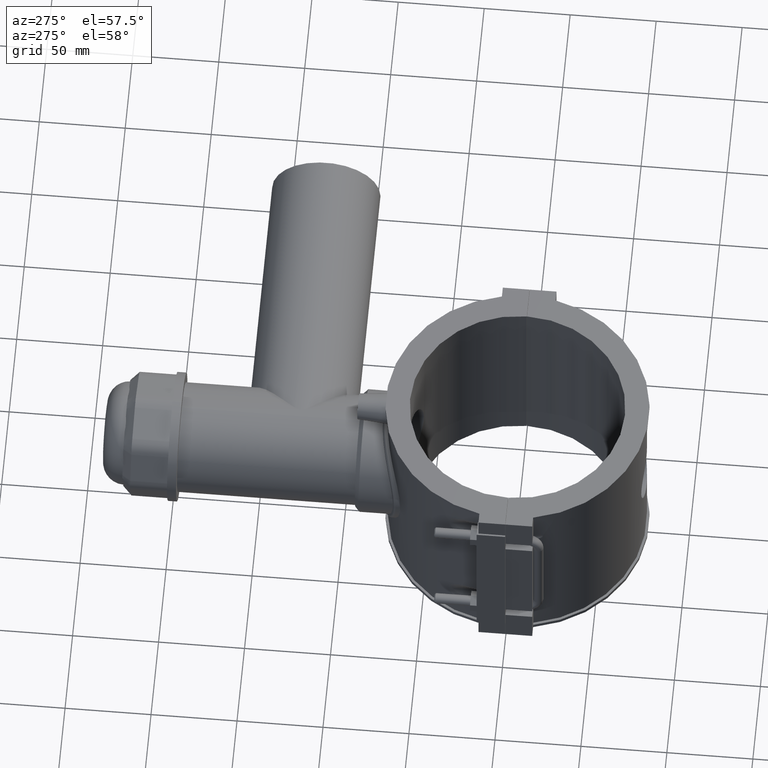
[diagram: clean part render]
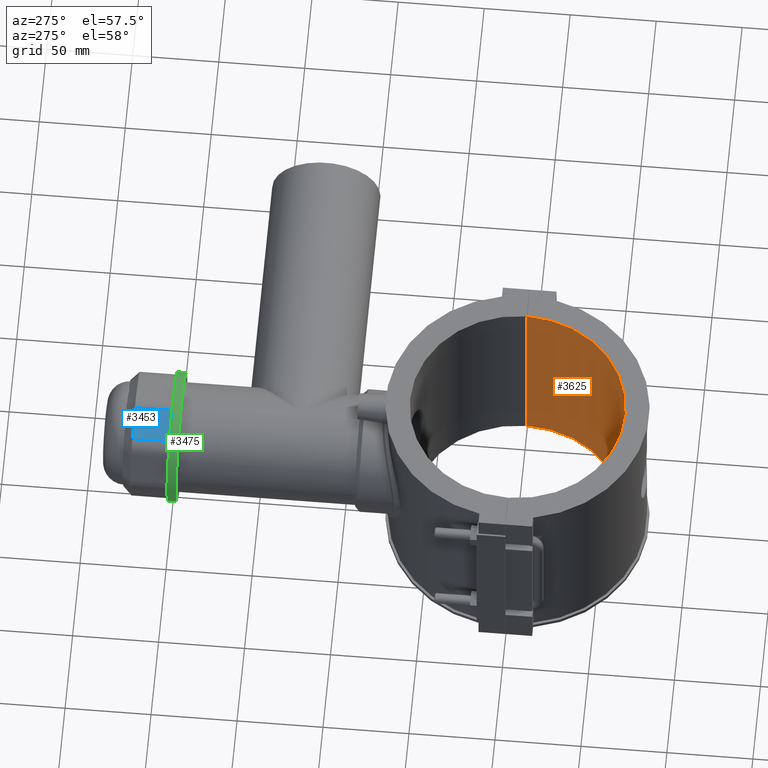
[diagram: same view with three faces highlighted in distinct colors, each labeled with its STEP entity id]
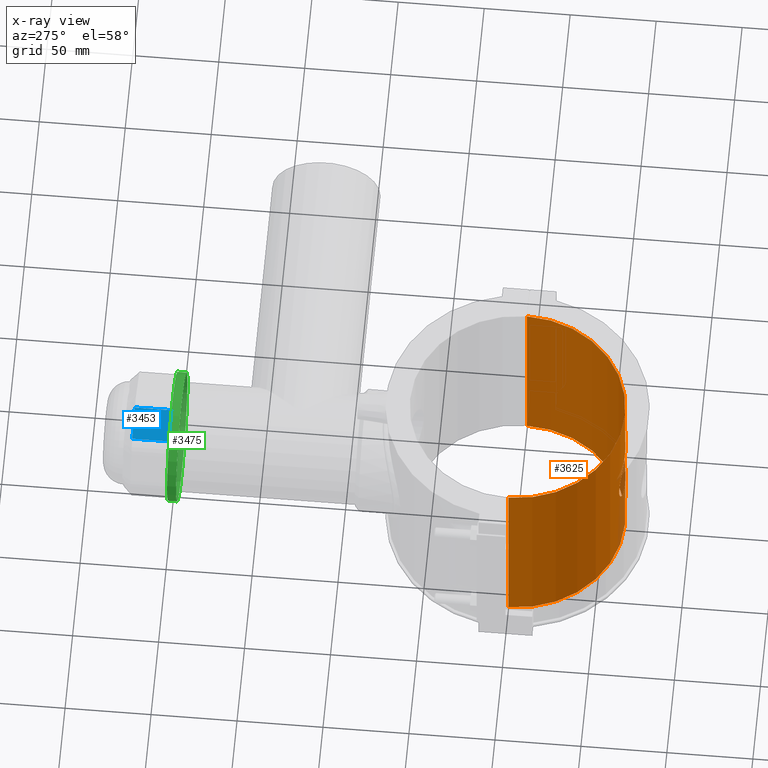
[diagram: x-ray of the same camera — body ghosted, the three highlighted faces saturated]
A machine part, auxiliary view with three faces highlighted in distinct colors.
The next image is the same camera in x-ray (body ghosted, the three faces saturated) — at least one of them is partly hidden behind the body in this view.
Their STEP definitions:

[orange] entity #3625 — the highlighted cylindrical surface (partial cylindrical patch) has radius 62.5 mm, axis along (0, 0, 1).
#283=LINE('',#7095,#582);
#336=LINE('',#7487,#635);
#582=VECTOR('',#4709,118.);
#635=VECTOR('',#4898,118.);
#695=FACE_BOUND('',#1298,.T.);
#712=B_SPLINE_CURVE_WITH_KNOTS('',3,(#5587,#5588,#5589,#5590,#5591,#5592,
#5593,#5594,#5595,#5596,#5597,#5598,#5599,#5600,#5601,#5602,#5603,#5604,
#5605,#5606,#5607,#5608,#5609,#5610,#5611,#5612,#5613,#5614,#5615,#5616,
#5617,#5618,#5619,#5620,#5621,#5622,#5623,#5624,#5625,#5626,#5627,#5628,
#5629,#5630,#5631,#5632,#5633,#5634,#5635,#5636,#5637,#5638,#5639,#5640,
#5641,#5642,#5643,#5644,#5645,#5646,#5647,#5648,#5649,#5650,#5651,#5652),
 .UNSPECIFIED.,.T.,.F.,(4,2,2,2,2,2,2,2,2,2,2,2,2,2,2,2,2,2,2,2,2,2,2,2,
2,2,2,2,2,2,2,2,4),(0.,0.296713617074853,0.593427234149707,0.89014085122456,
1.18685446829941,1.48352599418842,1.78019752007742,2.07686904596642,2.37354057185543,
2.67021209774443,2.96688362363343,3.26355514952244,3.56022667541144,3.85694029248629,
4.15365390956114,4.450367526636,4.74708114371085,5.04379476078571,5.34050837786056,
5.63722199493541,5.93393561201027,6.23060713789927,6.52727866378827,6.82395018967727,
7.12062171556628,7.41729324145528,7.71396476734428,8.01063629323329,8.30730781912229,
8.60402143619714,8.900735053272,9.19744867034685,9.4941622874217),
 .UNSPECIFIED.);
#827=CYLINDRICAL_SURFACE('',#3958,62.5);
#1033=FACE_OUTER_BOUND('',#1297,.T.);
#1297=EDGE_LOOP('',(#3248,#3249,#3250,#3251));
#1298=EDGE_LOOP('',(#3252));
#1432=CIRCLE('',#3955,62.5);
#1433=CIRCLE('',#3957,62.5);
#1515=VERTEX_POINT('',#5586);
#1715=VERTEX_POINT('',#7092);
#1716=VERTEX_POINT('',#7094);
#1768=VERTEX_POINT('',#7484);
#1769=VERTEX_POINT('',#7486);
#1892=EDGE_CURVE('',#1515,#1515,#712,.T.);
#2170=EDGE_CURVE('',#1716,#1715,#283,.T.);
#2263=EDGE_CURVE('',#1769,#1768,#336,.T.);
#2265=EDGE_CURVE('',#1769,#1715,#1432,.T.);
#2266=EDGE_CURVE('',#1716,#1768,#1433,.T.);
#3248=ORIENTED_EDGE('',*,*,#2263,.T.);
#3249=ORIENTED_EDGE('',*,*,#2266,.F.);
#3250=ORIENTED_EDGE('',*,*,#2170,.T.);
#3251=ORIENTED_EDGE('',*,*,#2265,.F.);
#3252=ORIENTED_EDGE('',*,*,#1892,.T.);
#3625=ADVANCED_FACE('',(#1033,#695),#827,.F.);
#3955=AXIS2_PLACEMENT_3D('',#7491,#4904,#4905);
#3957=AXIS2_PLACEMENT_3D('',#7493,#4908,#4909);
#3958=AXIS2_PLACEMENT_3D('',#7494,#4910,#4911);
#4709=DIRECTION('',(0.,0.,1.));
#4898=DIRECTION('',(0.,0.,-1.));
#4904=DIRECTION('center_axis',(0.,0.,-1.));
#4905=DIRECTION('ref_axis',(-1.,0.,0.));
#4908=DIRECTION('center_axis',(0.,0.,1.));
#4909=DIRECTION('ref_axis',(-1.,0.,0.));
#4910=DIRECTION('center_axis',(0.,0.,1.));
#4911=DIRECTION('ref_axis',(-1.,0.,0.));
#5586=CARTESIAN_POINT('',(15.68,-60.5011371793952,-2.77555756156289E-16));
#5587=CARTESIAN_POINT('Ctrl Pts',(15.68,-60.5011371793952,-2.77555756156289E-16));
#5588=CARTESIAN_POINT('Ctrl Pts',(15.68,-60.5011371793952,0.989045390249511));
#5589=CARTESIAN_POINT('Ctrl Pts',(15.5849128879652,-60.5260509344362,2.01044452076717));
#5590=CARTESIAN_POINT('Ctrl Pts',(15.1859893214769,-60.6273707143846,4.03944615733215));
#5591=CARTESIAN_POINT('Ctrl Pts',(14.882254018715,-60.7036916421501,5.04707279805853));
#5592=CARTESIAN_POINT('Ctrl Pts',(14.0808790626117,-60.8945687159385,6.97734078903111));
#5593=CARTESIAN_POINT('Ctrl Pts',(13.5826027393085,-61.0090844109358,7.9016004003937));
#5594=CARTESIAN_POINT('Ctrl Pts',(12.4327969197639,-61.2537430575092,9.60978391321038));
#5595=CARTESIAN_POINT('Ctrl Pts',(11.7811822567518,-61.3836351907405,10.3936864012583));
#5596=CARTESIAN_POINT('Ctrl Pts',(10.3937848149181,-61.6337247036271,11.781083843092));
#5597=CARTESIAN_POINT('Ctrl Pts',(9.60992827535144,-61.7627993138526,12.4326873128922));
#5598=CARTESIAN_POINT('Ctrl Pts',(7.90171663618481,-62.004491569047,13.5825369316202));
#5599=CARTESIAN_POINT('Ctrl Pts',(6.97738300336776,-62.1168773493664,14.0808636950187));
#5600=CARTESIAN_POINT('Ctrl Pts',(5.04696967397419,-62.3034382855447,14.88229467369));
#5601=CARTESIAN_POINT('Ctrl Pts',(4.039273959469,-62.3776074704934,15.1860356320058));
#5602=CARTESIAN_POINT('Ctrl Pts',(2.0102529703561,-62.4759196079409,15.5849380920303));
#5603=CARTESIAN_POINT('Ctrl Pts',(0.988905086296677,-62.5,15.68));
#5604=CARTESIAN_POINT('Ctrl Pts',(-0.988905086296675,-62.5,15.68));
#5605=CARTESIAN_POINT('Ctrl Pts',(-2.0102529703561,-62.4759196079409,15.5849380920303));
#5606=CARTESIAN_POINT('Ctrl Pts',(-4.039273959469,-62.3776074704934,15.1860356320058));
#5607=CARTESIAN_POINT('Ctrl Pts',(-5.04696967397419,-62.3034382855447,14.88229467369));
#5608=CARTESIAN_POINT('Ctrl Pts',(-6.97738300336776,-62.1168773493664,14.0808636950187));
#5609=CARTESIAN_POINT('Ctrl Pts',(-7.90171663618481,-62.004491569047,13.5825369316202));
#5610=CARTESIAN_POINT('Ctrl Pts',(-9.60992827535144,-61.7627993138526,12.4326873128922));
#5611=CARTESIAN_POINT('Ctrl Pts',(-10.3937848149181,-61.6337247036271,11.781083843092));
#5612=CARTESIAN_POINT('Ctrl Pts',(-11.7811822567518,-61.3836351907405,10.3936864012583));
#5613=CARTESIAN_POINT('Ctrl Pts',(-12.4327969197639,-61.2537430575092,9.60978391321039));
#5614=CARTESIAN_POINT('Ctrl Pts',(-13.5826027393085,-61.0090844109358,7.9016004003937));
#5615=CARTESIAN_POINT('Ctrl Pts',(-14.0808790626117,-60.8945687159385,6.97734078903112));
#5616=CARTESIAN_POINT('Ctrl Pts',(-14.882254018715,-60.7036916421501,5.04707279805853));
#5617=CARTESIAN_POINT('Ctrl Pts',(-15.1859893214769,-60.6273707143846,4.03944615733215));
#5618=CARTESIAN_POINT('Ctrl Pts',(-15.5849128879652,-60.5260509344362,2.01044452076717));
#5619=CARTESIAN_POINT('Ctrl Pts',(-15.68,-60.5011371793952,0.989045390249513));
#5620=CARTESIAN_POINT('Ctrl Pts',(-15.68,-60.5011371793952,-0.989045390249513));
#5621=CARTESIAN_POINT('Ctrl Pts',(-15.5849128879652,-60.5260509344362,-2.01044452076717));
#5622=CARTESIAN_POINT('Ctrl Pts',(-15.1859893214769,-60.6273707143846,-4.03944615733215));
#5623=CARTESIAN_POINT('Ctrl Pts',(-14.882254018715,-60.7036916421501,-5.04707279805853));
#5624=CARTESIAN_POINT('Ctrl Pts',(-14.0808790626117,-60.8945687159385,-6.97734078903111));
#5625=CARTESIAN_POINT('Ctrl Pts',(-13.5826027393085,-61.0090844109358,-7.90160040039369));
#5626=CARTESIAN_POINT('Ctrl Pts',(-12.4327969197639,-61.2537430575092,-9.60978391321038));
#5627=CARTESIAN_POINT('Ctrl Pts',(-11.7811822567518,-61.3836351907405,-10.3936864012583));
#5628=CARTESIAN_POINT('Ctrl Pts',(-10.3937848149181,-61.6337247036271,-11.781083843092));
#5629=CARTESIAN_POINT('Ctrl Pts',(-9.60992827535144,-61.7627993138526,-12.4326873128922));
#5630=CARTESIAN_POINT('Ctrl Pts',(-7.90171663618481,-62.004491569047,-13.5825369316202));
#5631=CARTESIAN_POINT('Ctrl Pts',(-6.97738300336776,-62.1168773493664,-14.0808636950187));
#5632=CARTESIAN_POINT('Ctrl Pts',(-5.04696967397419,-62.3034382855447,-14.88229467369));
#5633=CARTESIAN_POINT('Ctrl Pts',(-4.039273959469,-62.3776074704934,-15.1860356320058));
#5634=CARTESIAN_POINT('Ctrl Pts',(-2.01025297035611,-62.4759196079409,-15.5849380920303));
#5635=CARTESIAN_POINT('Ctrl Pts',(-0.988905086296681,-62.5,-15.68));
#5636=CARTESIAN_POINT('Ctrl Pts',(0.988905086296675,-62.5,-15.68));
#5637=CARTESIAN_POINT('Ctrl Pts',(2.0102529703561,-62.4759196079409,-15.5849380920303));
#5638=CARTESIAN_POINT('Ctrl Pts',(4.039273959469,-62.3776074704934,-15.1860356320058));
#5639=CARTESIAN_POINT('Ctrl Pts',(5.04696967397418,-62.3034382855447,-14.88229467369));
#5640=CARTESIAN_POINT('Ctrl Pts',(6.97738300336775,-62.1168773493664,-14.0808636950187));
#5641=CARTESIAN_POINT('Ctrl Pts',(7.90171663618481,-62.004491569047,-13.5825369316202));
#5642=CARTESIAN_POINT('Ctrl Pts',(9.60992827535144,-61.7627993138526,-12.4326873128922));
#5643=CARTESIAN_POINT('Ctrl Pts',(10.3937848149181,-61.6337247036271,-11.781083843092));
#5644=CARTESIAN_POINT('Ctrl Pts',(11.7811822567518,-61.3836351907405,-10.3936864012583));
#5645=CARTESIAN_POINT('Ctrl Pts',(12.4327969197639,-61.2537430575092,-9.60978391321038));
#5646=CARTESIAN_POINT('Ctrl Pts',(13.5826027393085,-61.0090844109358,-7.9016004003937));
#5647=CARTESIAN_POINT('Ctrl Pts',(14.0808790626117,-60.8945687159385,-6.97734078903111));
#5648=CARTESIAN_POINT('Ctrl Pts',(14.882254018715,-60.7036916421501,-5.04707279805852));
#5649=CARTESIAN_POINT('Ctrl Pts',(15.1859893214769,-60.6273707143846,-4.03944615733214));
#5650=CARTESIAN_POINT('Ctrl Pts',(15.5849128879652,-60.5260509344362,-2.01044452076716));
#5651=CARTESIAN_POINT('Ctrl Pts',(15.68,-60.5011371793952,-0.989045390249508));
#5652=CARTESIAN_POINT('Ctrl Pts',(15.68,-60.5011371793952,-2.77555756156289E-16));
#7092=CARTESIAN_POINT('',(-62.4999799999968,-0.0500000000000078,59.));
#7094=CARTESIAN_POINT('',(-62.4999799999968,-0.0500000000000078,-59.));
#7095=CARTESIAN_POINT('',(-62.4999799999968,-0.0500000000000078,0.));
#7484=CARTESIAN_POINT('',(62.4999799999968,-0.0500000000000078,-59.));
#7486=CARTESIAN_POINT('',(62.4999799999968,-0.0500000000000078,59.));
#7487=CARTESIAN_POINT('',(62.4999799999968,-0.0500000000000078,0.));
#7491=CARTESIAN_POINT('Origin',(0.,0.,59.));
#7493=CARTESIAN_POINT('Origin',(0.,0.,-59.));
#7494=CARTESIAN_POINT('Origin',(0.,0.,0.));

[blue] entity #3453 — the highlighted planar face has unit normal (-0.3827, -0, 0.9239).
#72=LINE('',#5369,#371);
#84=LINE('',#5436,#383);
#86=LINE('',#5442,#385);
#87=LINE('',#5443,#386);
#371=VECTOR('',#4060,18.3459183680544);
#383=VECTOR('',#4128,21.5499999999999);
#385=VECTOR('',#4134,21.5499999999999);
#386=VECTOR('',#4135,18.3459183680544);
#861=FACE_OUTER_BOUND('',#1078,.T.);
#1078=EDGE_LOOP('',(#2402,#2403,#2404,#2405));
#1475=VERTEX_POINT('',#5351);
#1479=VERTEX_POINT('',#5367);
#1492=VERTEX_POINT('',#5435);
#1494=VERTEX_POINT('',#5441);
#1825=EDGE_CURVE('',#1479,#1475,#72,.T.);
#1853=EDGE_CURVE('',#1475,#1492,#84,.T.);
#1856=EDGE_CURVE('',#1494,#1479,#86,.T.);
#1857=EDGE_CURVE('',#1492,#1494,#87,.T.);
#2402=ORIENTED_EDGE('',*,*,#1825,.F.);
#2403=ORIENTED_EDGE('',*,*,#1856,.F.);
#2404=ORIENTED_EDGE('',*,*,#1857,.F.);
#2405=ORIENTED_EDGE('',*,*,#1853,.F.);
#3314=PLANE('',#3695);
#3453=ADVANCED_FACE('',(#861),#3314,.T.);
#3695=AXIS2_PLACEMENT_3D('',#5440,#4132,#4133);
#4060=DIRECTION('',(0.923879532511286,-1.17163010133158E-16,0.38268343236509));
#4128=DIRECTION('',(-6.9726111936842E-32,-1.,-3.34530478229802E-16));
#4132=DIRECTION('center_axis',(-0.38268343236509,-3.09065861837727E-16,
0.923879532511287));
#4133=DIRECTION('ref_axis',(-0.923879532511287,0.,-0.38268343236509));
#4134=DIRECTION('',(0.,1.,3.34530478229802E-16));
#4135=DIRECTION('',(-0.923879532511287,1.17163010133158E-16,-0.38268343236509));
#5351=CARTESIAN_POINT('',(-4.78354290456364,222.11,35.5185916527362));
#5367=CARTESIAN_POINT('',(-21.7329613899319,222.11,28.4979126417594));
#5369=CARTESIAN_POINT('',(-1.32582521472479,222.11,36.9508252147248));
#5435=CARTESIAN_POINT('',(-4.78354290456364,200.56,35.5185916527362));
#5436=CARTESIAN_POINT('',(-4.78354290456364,227.11,35.5185916527362));
#5440=CARTESIAN_POINT('Origin',(-1.55431223447522E-14,227.11,37.5000000000001));
#5441=CARTESIAN_POINT('',(-21.7329613899319,200.56,28.4979126417594));
#5442=CARTESIAN_POINT('',(-21.7329613899319,227.11,28.4979126417594));
#5443=CARTESIAN_POINT('',(-0.928077650307354,200.56,37.1155776503074));

[green] entity #3475 — the highlighted cylindrical surface (bore or boss wall) has radius 37.5 mm, axis along (0, 1, 0).
#655=FACE_BOUND('',#1108,.T.);
#787=CYLINDRICAL_SURFACE('',#3730,37.5);
#883=FACE_OUTER_BOUND('',#1107,.T.);
#1107=EDGE_LOOP('',(#2506));
#1108=EDGE_LOOP('',(#2507));
#1348=CIRCLE('',#3725,37.5);
#1350=CIRCLE('',#3729,37.5);
#1511=VERTEX_POINT('',#5509);
#1513=VERTEX_POINT('',#5515);
#1888=EDGE_CURVE('',#1511,#1511,#1348,.T.);
#1890=EDGE_CURVE('',#1513,#1513,#1350,.T.);
#2506=ORIENTED_EDGE('',*,*,#1890,.T.);
#2507=ORIENTED_EDGE('',*,*,#1888,.F.);
#3475=ADVANCED_FACE('',(#883,#655),#787,.T.);
#3725=AXIS2_PLACEMENT_3D('',#5510,#4214,#4215);
#3729=AXIS2_PLACEMENT_3D('',#5516,#4222,#4223);
#3730=AXIS2_PLACEMENT_3D('',#5517,#4224,#4225);
#4214=DIRECTION('center_axis',(0.,1.,3.06161699786838E-16));
#4215=DIRECTION('ref_axis',(1.,0.,0.));
#4222=DIRECTION('center_axis',(0.,1.,3.06161699786838E-16));
#4223=DIRECTION('ref_axis',(1.,0.,0.));
#4224=DIRECTION('center_axis',(0.,1.,3.06161699786838E-16));
#4225=DIRECTION('ref_axis',(0.,0.,1.));
#5509=CARTESIAN_POINT('',(0.,200.56,37.5));
#5510=CARTESIAN_POINT('Origin',(0.,200.56,4.22686842725709E-14));
#5515=CARTESIAN_POINT('',(0.,195.25,37.5));
#5516=CARTESIAN_POINT('Origin',(0.,195.25,4.06429656467028E-14));
#5517=CARTESIAN_POINT('Origin',(0.,197.905,4.14558249596369E-14));